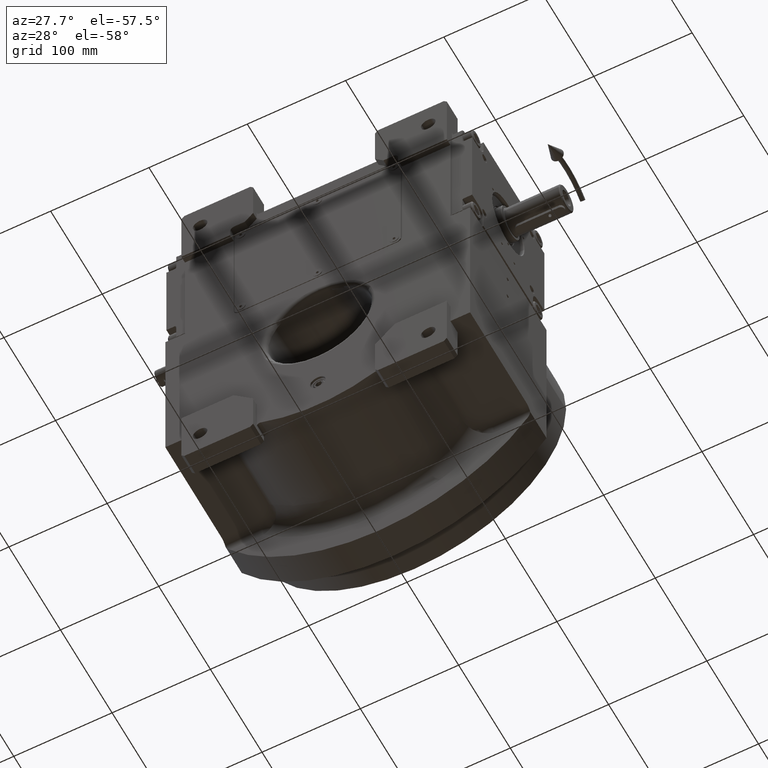
[diagram: clean part render]
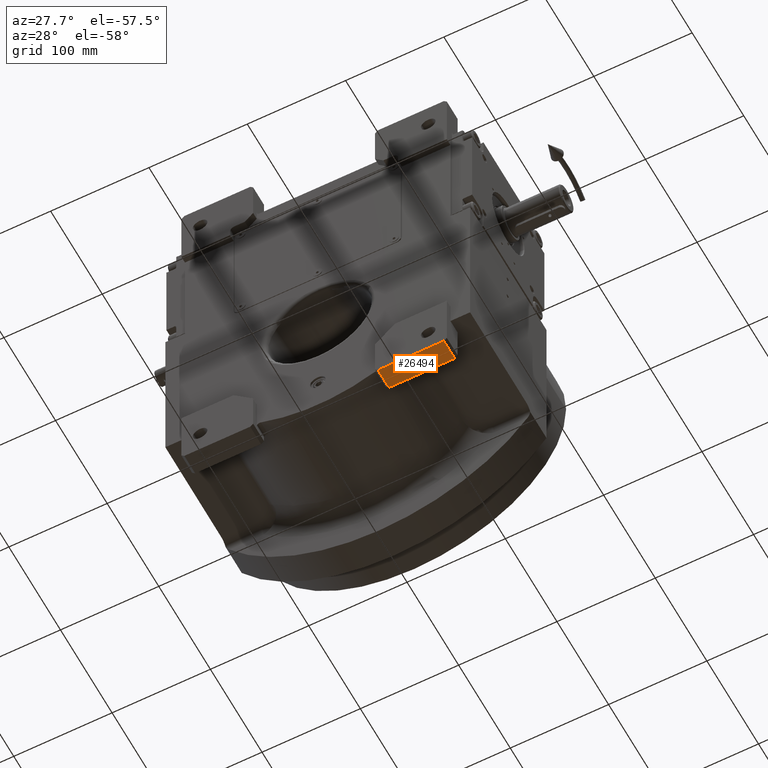
[diagram: same view with one face highlighted and labeled with its STEP entity id]
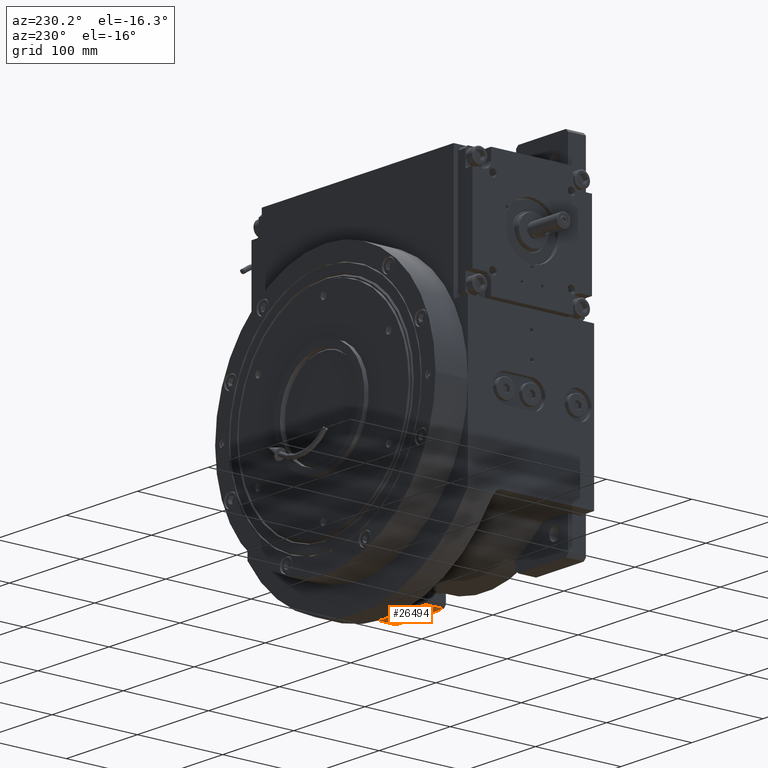
[diagram: same view with one face highlighted and labeled with its STEP entity id]
A machine part, auxiliary view. The second image highlights one B-rep face of the part: STEP entity #26494.
A second angle (auxiliary view) of the same face is appended — the face is thin or edge-on in the first view.
In plain terms, the highlighted planar face has unit normal (0, 0, -1).
Its self-contained STEP definition (entity closure, byte-faithful):
#1352 = CARTESIAN_POINT ( 'NONE',  ( 132.0000000000000000, -80.00000000000000000, -137.0000000000000000 ) ) ;
#2480 = EDGE_CURVE ( 'NONE', #26525, #55505, #32903, .T. ) ;
#2913 = VERTEX_POINT ( 'NONE', #32469 ) ;
#6747 = CARTESIAN_POINT ( 'NONE',  ( 65.00000000000000000, -80.00000000000000000, -137.0000000000000000 ) ) ;
#8219 = VECTOR ( 'NONE', #27996, 1000.000000000000000 ) ;
#9503 = ORIENTED_EDGE ( 'NONE', *, *, #19664, .T. ) ;
#14925 = DIRECTION ( 'NONE',  ( 1.000000000000000000, 0.000000000000000000, 0.000000000000000000 ) ) ;
#15139 = VECTOR ( 'NONE', #42120, 1000.000000000000000 ) ;
#15258 = CARTESIAN_POINT ( 'NONE',  ( 65.00000000000000000, -59.00000000000000000, -137.0000000000000000 ) ) ;
#15928 = ORIENTED_EDGE ( 'NONE', *, *, #52405, .T. ) ;
#16684 = CARTESIAN_POINT ( 'NONE',  ( 65.00000000000000000, -80.00000000000000000, -137.0000000000000000 ) ) ;
#16715 = VECTOR ( 'NONE', #14925, 1000.000000000000000 ) ;
#19664 = EDGE_CURVE ( 'NONE', #26525, #2913, #31331, .T. ) ;
#26494 = ADVANCED_FACE ( 'NONE', ( #28847 ), #64723, .T. ) ;
#26525 = VERTEX_POINT ( 'NONE', #16684 ) ;
#27475 = DIRECTION ( 'NONE',  ( 1.000000000000000000, 0.000000000000000000, 0.000000000000000000 ) ) ;
#27996 = DIRECTION ( 'NONE',  ( 1.000000000000000000, 0.000000000000000000, 0.000000000000000000 ) ) ;
#28847 = FACE_OUTER_BOUND ( 'NONE', #47844, .T. ) ;
#31331 = LINE ( 'NONE', #42811, #15139 ) ;
#32469 = CARTESIAN_POINT ( 'NONE',  ( 65.00000000000000000, -59.00000000000000000, -137.0000000000000000 ) ) ;
#32903 = LINE ( 'NONE', #6747, #8219 ) ;
#33973 = VECTOR ( 'NONE', #44568, 1000.000000000000000 ) ;
#40831 = ORIENTED_EDGE ( 'NONE', *, *, #58851, .F. ) ;
#42120 = DIRECTION ( 'NONE',  ( 0.000000000000000000, 1.000000000000000000, 0.000000000000000000 ) ) ;
#42811 = CARTESIAN_POINT ( 'NONE',  ( 65.00000000000000000, -80.00000000000000000, -137.0000000000000000 ) ) ;
#44568 = DIRECTION ( 'NONE',  ( 0.000000000000000000, 1.000000000000000000, 0.000000000000000000 ) ) ;
#44874 = VERTEX_POINT ( 'NONE', #45573 ) ;
#45573 = CARTESIAN_POINT ( 'NONE',  ( 132.0000000000000000, -59.00000000000000000, -137.0000000000000000 ) ) ;
#47303 = LINE ( 'NONE', #15258, #16715 ) ;
#47722 = AXIS2_PLACEMENT_3D ( 'NONE', #64382, #59865, #27475 ) ;
#47844 = EDGE_LOOP ( 'NONE', ( #15928, #40831, #51045, #9503 ) ) ;
#49109 = LINE ( 'NONE', #1352, #33973 ) ;
#51045 = ORIENTED_EDGE ( 'NONE', *, *, #2480, .F. ) ;
#52405 = EDGE_CURVE ( 'NONE', #2913, #44874, #47303, .T. ) ;
#55505 = VERTEX_POINT ( 'NONE', #66632 ) ;
#58851 = EDGE_CURVE ( 'NONE', #55505, #44874, #49109, .T. ) ;
#59865 = DIRECTION ( 'NONE',  ( 0.000000000000000000, 0.000000000000000000, -1.000000000000000000 ) ) ;
#64382 = CARTESIAN_POINT ( 'NONE',  ( 62.00000000000000000, -59.00000000000000000, -137.0000000000000000 ) ) ;
#64723 = PLANE ( 'NONE',  #47722 ) ;
#66632 = CARTESIAN_POINT ( 'NONE',  ( 132.0000000000000000, -80.00000000000000000, -137.0000000000000000 ) ) ;